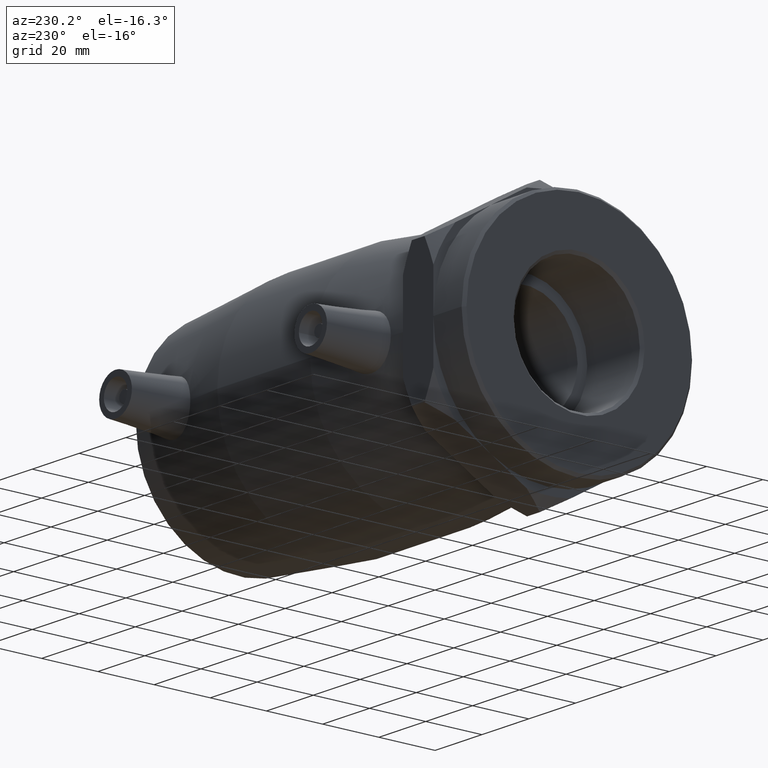
[diagram: clean part render]
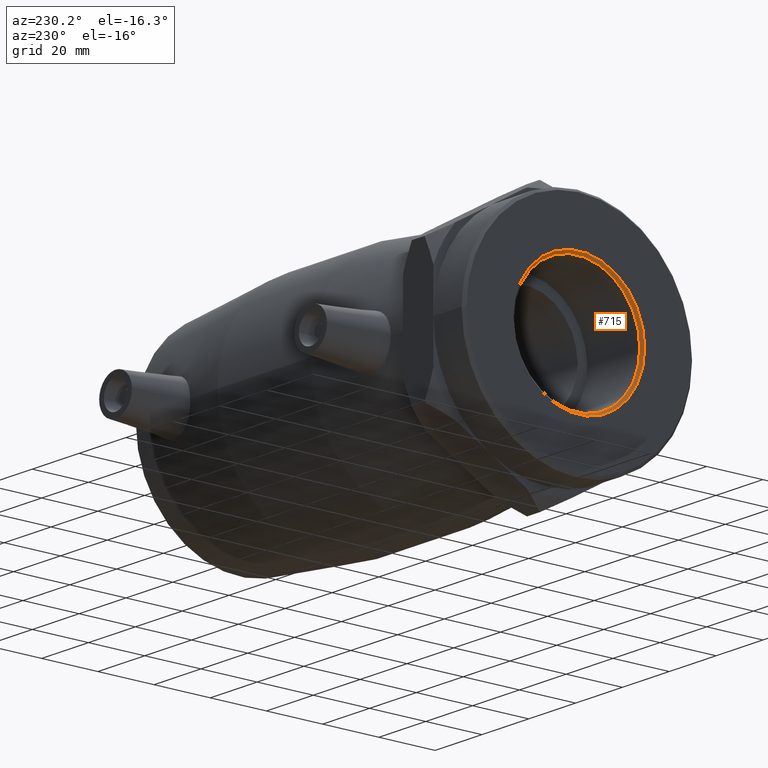
[diagram: same view with one face highlighted and labeled with its STEP entity id]
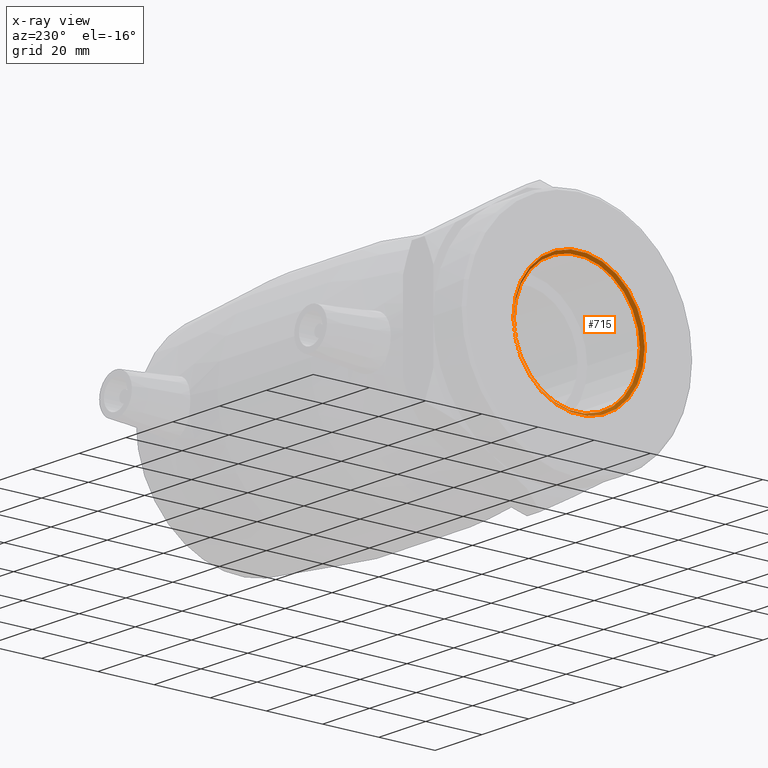
[diagram: x-ray of the same camera — body ghosted, the highlighted face saturated]
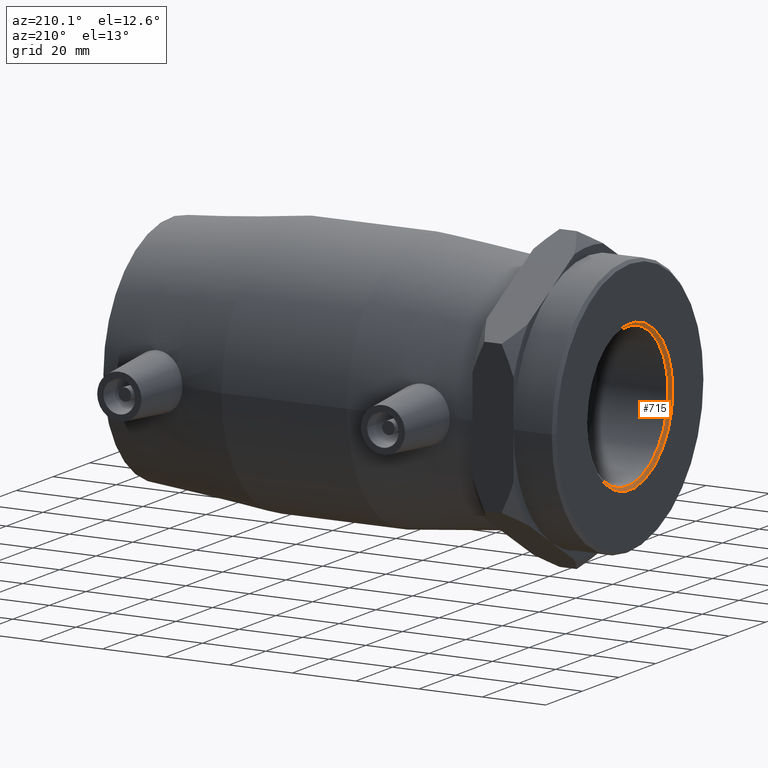
[diagram: same view with one face highlighted and labeled with its STEP entity id]
A machine part, auxiliary view. The second image highlights one B-rep face of the part: STEP entity #715.
The next image is the same camera in x-ray: the body ghosted, the highlighted face saturated — about 0% of this face is hidden behind the body in this view.
A second angle (auxiliary view) of the same face is appended — the face is thin or edge-on in the first view.
In plain terms, the highlighted conical surface has half-angle 45 deg.
Its self-contained STEP definition (entity closure, byte-faithful):
#126=FACE_BOUND('',#214,.T.);
#156=FACE_OUTER_BOUND('',#213,.T.);
#213=EDGE_LOOP('',(#508));
#214=EDGE_LOOP('',(#509));
#295=CIRCLE('',#776,22.4225);
#296=CIRCLE('',#777,23.3675);
#340=VERTEX_POINT('',#1104);
#341=VERTEX_POINT('',#1106);
#411=EDGE_CURVE('',#340,#340,#295,.T.);
#412=EDGE_CURVE('',#341,#341,#296,.T.);
#508=ORIENTED_EDGE('',*,*,#411,.T.);
#509=ORIENTED_EDGE('',*,*,#412,.T.);
#693=CONICAL_SURFACE('',#775,22.895,44.9999999999992);
#715=ADVANCED_FACE('',(#156,#126),#693,.F.);
#775=AXIS2_PLACEMENT_3D('',#1103,#883,#884);
#776=AXIS2_PLACEMENT_3D('',#1105,#885,#886);
#777=AXIS2_PLACEMENT_3D('',#1107,#887,#888);
#883=DIRECTION('center_axis',(-1.,0.,0.));
#884=DIRECTION('ref_axis',(0.,-1.,0.));
#885=DIRECTION('center_axis',(1.,0.,0.));
#886=DIRECTION('ref_axis',(0.,-1.,0.));
#887=DIRECTION('center_axis',(-1.,0.,0.));
#888=DIRECTION('ref_axis',(0.,-1.,0.));
#1103=CARTESIAN_POINT('Origin',(-85.0275,0.,0.));
#1104=CARTESIAN_POINT('',(-84.555,22.4225,2.74596428538815E-15));
#1105=CARTESIAN_POINT('Origin',(-84.555,0.,0.));
#1106=CARTESIAN_POINT('',(-85.5,23.3675,-2.86169340790758E-15));
#1107=CARTESIAN_POINT('Origin',(-85.5,0.,0.));